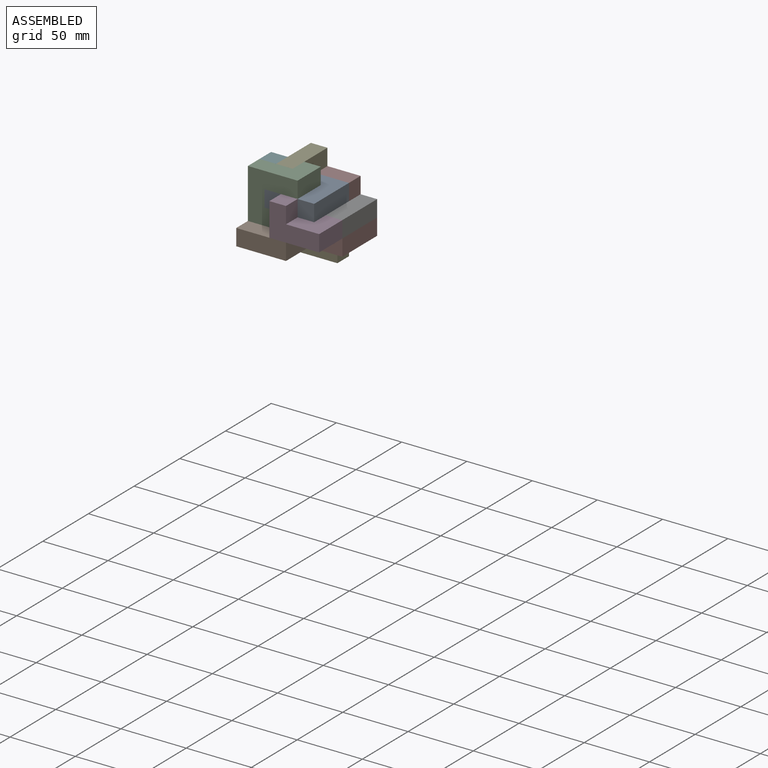
[diagram: assembled view]
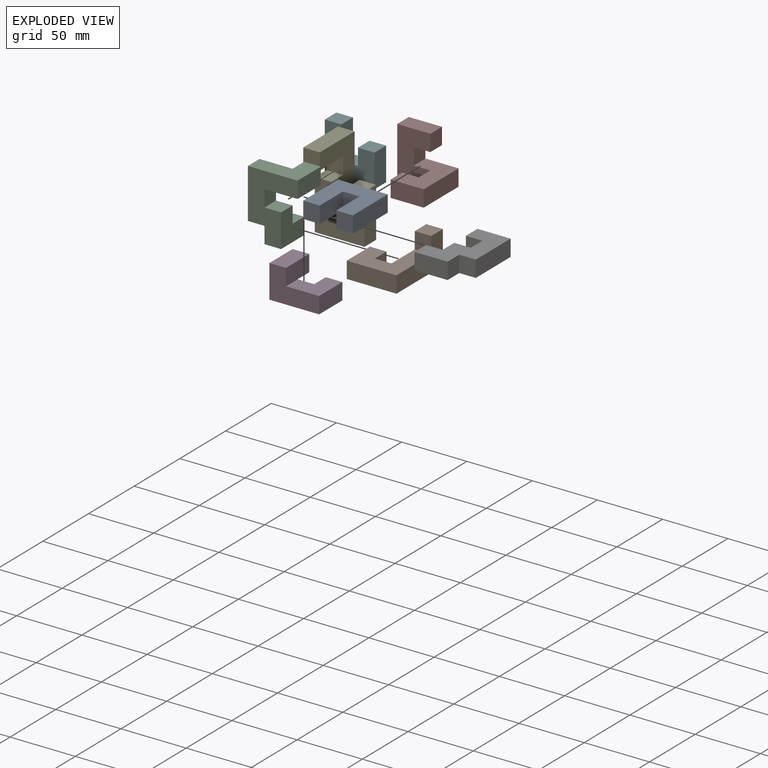
[diagram: exploded view]
GUIDED TOUR — MATED ASSEMBLY (Onshape document 6fbb4858d770c2b3fe43645e, AutoMate assembly 6fbb4858d770c2b3fe43645e_54ea213161431d35774409cc_f73f96c887cfaddfc6c54e61_default)

This assembly has 8 components, labeled P0..P7 below (a component is one placed occurrence of a part; the same part can appear more than once), held together by 21 mates. A mate is a constraint between two components; its type names the relative motion it leaves free:
  PLANAR — leaves sliding in the plane through the listed point (normal = the listed direction) and rotation about that normal free.
Axis/direction vectors are unit vectors and 'through' points are millimeter coordinates, both in the assembly's world frame.

MATES
  1. PLANAR "Planar 9": P2 <-> P1, direction (-1.000, 0.000, 0.000) through (-52.81, -97.62, 18.22) mm
  2. PLANAR "Planar 18": P3 <-> P6, direction (-1.000, 0.000, 0.000) through (-14.71, -103.97, 30.92) mm
  3. PLANAR "Planar 10": P4 <-> P0, direction (0.000, 0.000, 1.000) through (-21.06, -78.57, 37.27) mm
  4. PLANAR "Planar 14": P6 <-> P4, direction (0.000, -1.000, 0.000) through (-21.06, -72.22, 37.27) mm
  5. PLANAR "Planar 12": P2 <-> P4, direction (0.000, 1.000, 0.000) through (-46.46, -97.62, 49.97) mm
  6. PLANAR "Planar 16": P6 <-> P3, direction (0.000, -1.000, 0.000) through (-8.36, -97.62, 30.92) mm
  7. PLANAR "Planar 3": P5 <-> P0, direction (0.000, 1.000, 0.000) through (-50.09, -84.92, 36.36) mm
  8. PLANAR "Planar 6": P5 <-> P2, direction (0.000, -1.000, 0.000) through (-40.11, -97.62, 37.27) mm
  9. PLANAR "Planar 13": P6 <-> P2, direction (-1.000, 0.000, 0.000) through (-40.11, -103.97, 30.92) mm
  10. PLANAR "Planar 15": P6 <-> P0, direction (0.000, 0.000, 1.000) through (-17.43, -85.82, 37.27) mm
  11. PLANAR "Planar 4": P2 <-> P5, direction (0.000, 0.000, 1.000) through (-46.46, -91.27, 24.57) mm
  12. PLANAR "Planar 21": P7 <-> P6, direction (1.000, 0.000, 0.000) through (-27.41, -72.22, 37.27) mm
  13. PLANAR "Planar 20": P7 <-> P4, direction (0.000, 1.000, 0.000) through (-21.06, -84.92, 18.22) mm
  14. PLANAR "Planar 2": P5 <-> P0, direction (-1.000, 0.000, 0.000) through (-40.11, -97.62, 49.97) mm
  15. PLANAR "Planar 11": P4 <-> P1, direction (-1.000, 0.000, 0.000) through (-27.41, -78.57, 24.57) mm
  16. PLANAR "Planar 8": P1 <-> P2, direction (0.000, 1.000, 0.000) through (-46.46, -110.32, 18.22) mm
  17. PLANAR "Planar 19": P7 <-> P6, direction (0.000, 0.000, 1.000) through (-2.01, -78.57, 24.57) mm
  18. PLANAR "Planar 5": P0 <-> P2, direction (-1.000, 0.000, 0.000) through (-52.81, -110.32, 43.62) mm
  19. PLANAR "Planar 7": P1 <-> P5, direction (0.000, 0.000, 1.000) through (-44.35, -108.20, 24.57) mm
  20. PLANAR "Planar 1": P5 <-> P0, direction (0.000, 0.000, 1.000) through (-46.46, -91.27, 37.27) mm
  21. PLANAR "Planar 17": P3 <-> P1, direction (0.000, 0.000, -1.000) through (-17.89, -113.49, 24.57) mm

ASSEMBLY ORDER
  1. P2 — the base component [order heuristic]
  2. P0 — core [order heuristic]
  3. P5 — core [order heuristic]
  4. P3 [order verified]
  5. P6 — core [order heuristic]
  6. P4 — core [order heuristic]
  7. P7 — core [order heuristic]
  8. P1 [order verified]
Order-tag legend:
  [order verified] — this step's position reverses a verified removal order: the component was checked to insert without passing through the ones already placed.
  [order heuristic] — the first 6 components form the assembly's core: parts whose collision-free extraction could not be verified, listed in mate-graph order.

Of the 8 components, 4 carry the full construction recipe — the FeatureScript program that regenerates the part's solid from scratch; the rest are supplied as boundary geometry only.
Each toured component is shown spotlighted twice — in the assembled view, then in the exploded view, where a leader line traces a displaced component back to its assembled socket (saturated green if recipe-attached, orange if geometry-only; every other component desaturated gray) — followed by its recipe or geometry summary and the mates that hold it.
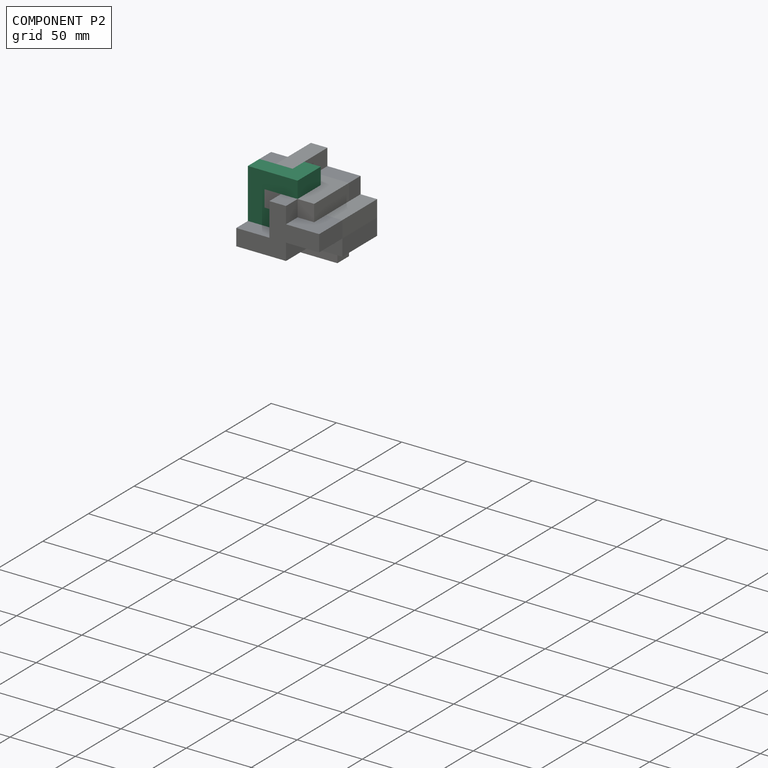
[diagram: component P2 — assembled]
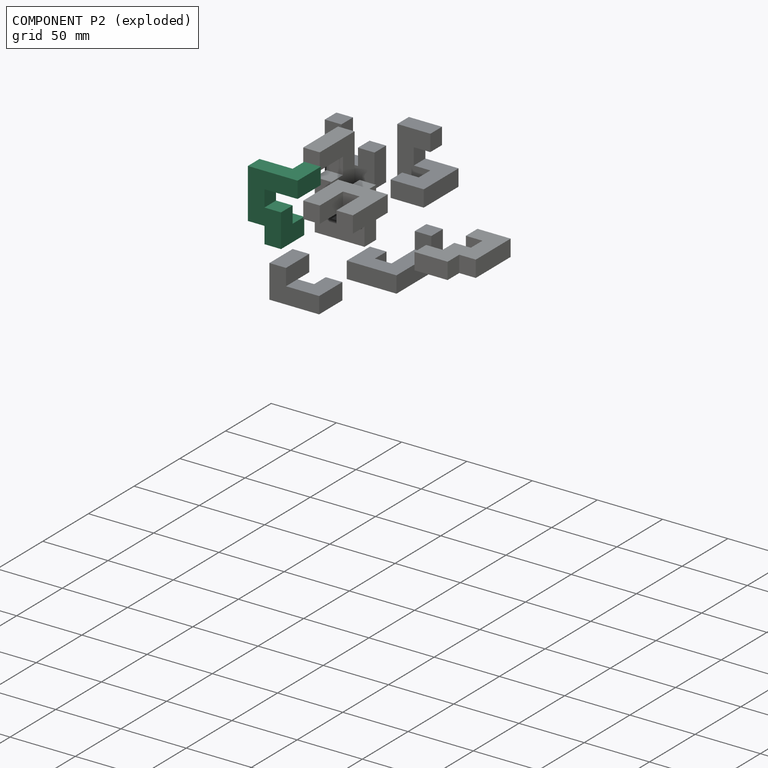
[diagram: component P2 — exploded]
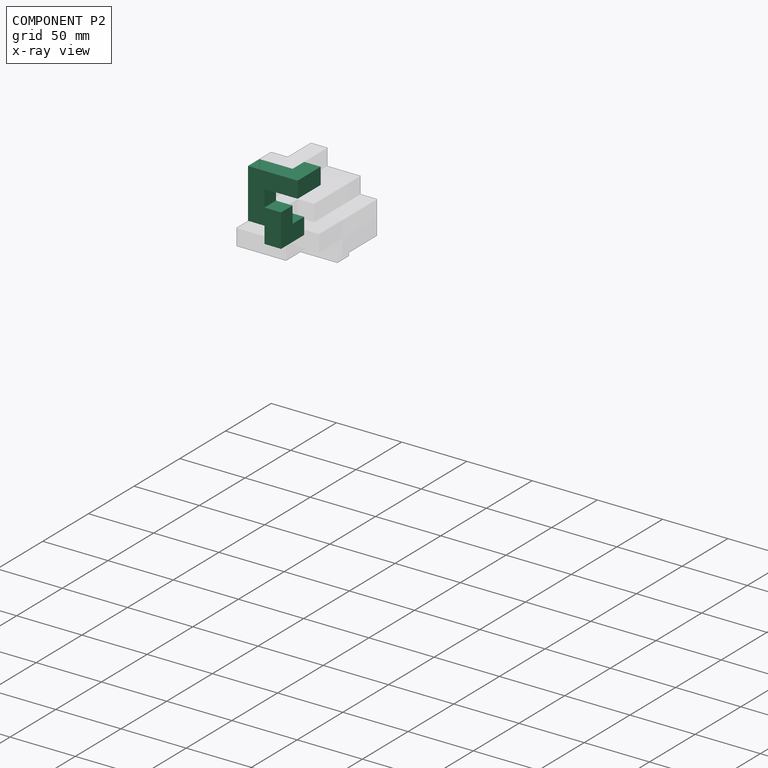
[diagram: component P2 — x-ray view]
COMPONENT P2 — recipe-attached (CADFS 00937155, mesh-verified: the recipe's output STEP matches this component's geometry to below the mesh-comparison resolution (tessellation chordal tolerance ~0.103 mm)).
Held by: PLANAR mate "Planar 9" to P1; PLANAR mate "Planar 12" to P4; PLANAR mate "Planar 6" to P5; PLANAR mate "Planar 13" to P6; PLANAR mate "Planar 4" to P5; PLANAR mate "Planar 8" to P1; PLANAR mate "Planar 5" to P0.
Construction recipe (FeatureScript — the CAD program that rebuilds this solid; sketch coordinates are in the units given by the * unit suffixes, e.g. mm):

FeatureScript 1511;
import(path : "onshape/std/geometry.fs", version : "1511.0");
import(path : "onshape/std/common.fs", version : "1511.0");
const mm = millimeter;
const VERTEX = EntityType.VERTEX;
const EDGE = EntityType.EDGE;
const FACE = EntityType.FACE;
const BODY = EntityType.BODY;
function v(x, y){return vector(x, y);}
function OD(order){return orderDisambiguation(order);}
function OSD(set){return originalSetDisambiguation(set);}
function TD(topology){return topologyDisambiguation(topology);}
function TDD(query){return trueDependencyDisambiguation(query);}
function sQuery(a, b, c) {return sketchEntityQuery(a, b, c);}

annotation { "Feature Type Name" : "Feature", "Feature Type Description" : "" }
export const myFeature = defineFeature(function(context is Context, id is Id, definition is map)
    precondition{}
    {
        {
            var Q0;
            Q0=qCreatedBy(makeId("Front.planeOp"),FACE);
            var sketch = newSketch(context, id + "F0", { "sketchPlane" : qUnion([Q0])});
            skLineSegment(sketch, "E0.bottom", {"start": v(-61.09, 62.84) * mm, "end": v(-48.39, 62.84) * mm});
            skLineSegment(sketch, "E0.top", {"start": v(-61.09, 50.14) * mm, "end": v(-48.39, 50.14) * mm});
            skLineSegment(sketch, "E0.left", {"start": v(-61.09, 62.84) * mm, "end": v(-61.09, 50.14) * mm});
            skLineSegment(sketch, "E0.right", {"start": v(-48.39, 62.84) * mm, "end": v(-48.39, 50.14) * mm});
            skLineSegment(sketch, "E1.top", {"start": v(-61.09, 37.44) * mm, "end": v(-48.39, 37.44) * mm});
            skLineSegment(sketch, "E1.left", {"start": v(-61.09, 50.14) * mm, "end": v(-61.09, 37.44) * mm});
            skLineSegment(sketch, "E1.right", {"start": v(-48.39, 50.14) * mm, "end": v(-48.39, 37.44) * mm});
            skLineSegment(sketch, "E2.top", {"start": v(-61.09, 24.74) * mm, "end": v(-48.39, 24.74) * mm});
            skLineSegment(sketch, "E2.left", {"start": v(-61.09, 37.44) * mm, "end": v(-61.09, 24.74) * mm});
            skLineSegment(sketch, "E2.right", {"start": v(-48.39, 37.44) * mm, "end": v(-48.39, 24.74) * mm});
            skLineSegment(sketch, "E3.bottom", {"start": v(-48.39, 24.74) * mm, "end": v(-35.69, 24.74) * mm});
            skLineSegment(sketch, "E3.top", {"start": v(-48.39, 37.44) * mm, "end": v(-35.69, 37.44) * mm});
            skLineSegment(sketch, "E3.left", {"start": v(-48.39, 24.74) * mm, "end": v(-48.39, 37.44) * mm});
            skLineSegment(sketch, "E3.right", {"start": v(-35.69, 24.74) * mm, "end": v(-35.69, 37.44) * mm});
            skLineSegment(sketch, "E4.bottom", {"start": v(-35.69, 37.44) * mm, "end": v(-22.99, 37.44) * mm});
            skLineSegment(sketch, "E4.top", {"start": v(-35.69, 24.74) * mm, "end": v(-22.99, 24.74) * mm});
            skLineSegment(sketch, "E4.left", {"start": v(-35.69, 37.44) * mm, "end": v(-35.69, 24.74) * mm});
            skLineSegment(sketch, "E4.right", {"start": v(-22.99, 37.44) * mm, "end": v(-22.99, 24.74) * mm});
            skLineSegment(sketch, "E5.top", {"start": v(-35.69, 50.14) * mm, "end": v(-22.99, 50.14) * mm});
            skLineSegment(sketch, "E5.left", {"start": v(-35.69, 37.44) * mm, "end": v(-35.69, 50.14) * mm});
            skLineSegment(sketch, "E5.right", {"start": v(-22.99, 37.44) * mm, "end": v(-22.99, 50.14) * mm});
            skLineSegment(sketch, "E6.bottom", {"start": v(-22.99, 50.14) * mm, "end": v(-10.29, 50.14) * mm});
            skLineSegment(sketch, "E6.top", {"start": v(-22.99, 37.44) * mm, "end": v(-10.29, 37.44) * mm});
            skLineSegment(sketch, "E6.left", {"start": v(-22.99, 50.14) * mm, "end": v(-22.99, 37.44) * mm});
            skLineSegment(sketch, "E6.right", {"start": v(-10.29, 50.14) * mm, "end": v(-10.29, 37.44) * mm});
            skSolve(sketch);
        }
        {
            var Q0;
            Q0=makeQuery(id+"F0.imprint","IMPRINT",FACE,{"disambiguationData":[TD([[makeQuery(id+"F0.imprint","IMPRINT",EDGE,{"derivedFrom":sQuery(id+"F0.wireOp",EDGE,"E0.top")}),-1.0]])]});
            var Q1;
            Q1=makeQuery(id+"F0.imprint","IMPRINT",FACE,{"disambiguationData":[TD([[makeQuery(id+"F0.imprint","IMPRINT",EDGE,{"derivedFrom":sQuery(id+"F0.wireOp",EDGE,"E1.top")}),-1.0]])]});
            var Q2;
            Q2=makeQuery(id+"F0.imprint","IMPRINT",FACE,{"disambiguationData":[TD([[makeQuery(id+"F0.imprint","IMPRINT",EDGE,{"derivedFrom":sQuery(id+"F0.wireOp",EDGE,"E4.top")}),1.0]])]});
            var Q3;
            Q3=makeQuery(id+"F0.imprint","IMPRINT",FACE,{"disambiguationData":[TD([[makeQuery(id+"F0.imprint","IMPRINT",EDGE,{"derivedFrom":sQuery(id+"F0.wireOp",EDGE,"E3.bottom")}),1.0]])]});
            var Q4;
            Q4=makeQuery(id+"F0.imprint","IMPRINT",FACE,{"disambiguationData":[TD([[makeQuery(id+"F0.imprint","IMPRINT",EDGE,{"derivedFrom":sQuery(id+"F0.wireOp",EDGE,"E4.bottom")}),1.0]])]});
            extrude(context, id + "F1", {"entities" : qUnion([Q0, Q1, Q2, Q3, Q4]), "depth" : 12.7 * mm, "offsetDistance" : 25.4 * mm});
        }
        {
            var Q0;
            Q0=makeQuery(id+"F0.imprint","IMPRINT",FACE,{"disambiguationData":[TD([[makeQuery(id+"F0.imprint","IMPRINT",EDGE,{"derivedFrom":sQuery(id+"F0.wireOp",EDGE,"E0.bottom")}),-1.0]])]});
            var Q1;
            Q1=makeQuery(id+"F0.imprint","IMPRINT",FACE,{"disambiguationData":[TD([[makeQuery(id+"F0.imprint","IMPRINT",EDGE,{"derivedFrom":sQuery(id+"F0.wireOp",EDGE,"E6.bottom")}),-1.0]])]});
            extrude(context, id + "F2", {"entities" : qUnion([Q0, Q1]), "operationType" : NewBodyOperationType.ADD, "endBound" : BoundingType.SYMMETRIC, "depth" : 25.4 * mm, "offsetDistance" : 25.4 * mm});
        }
    });
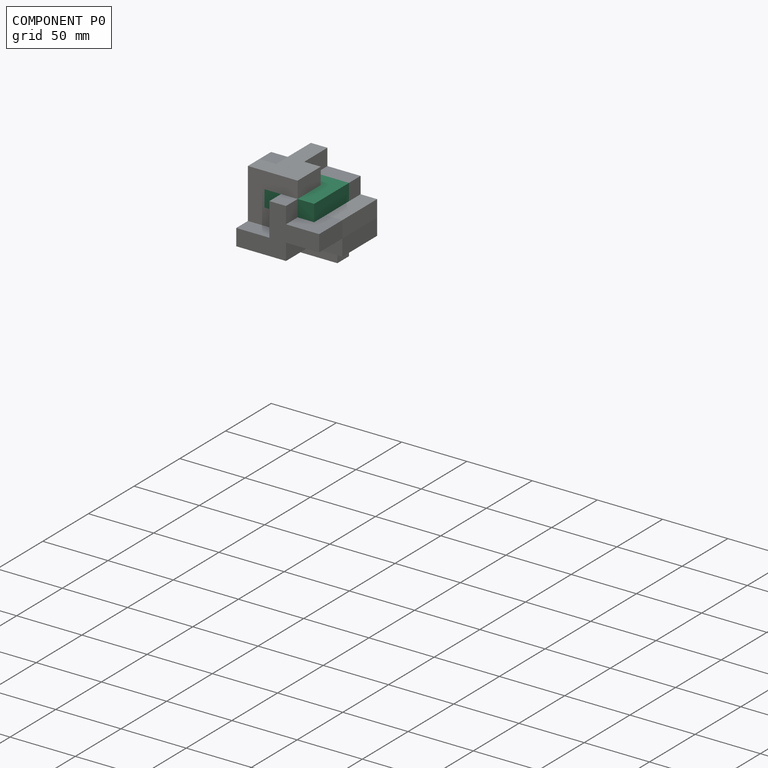
[diagram: component P0 — assembled]
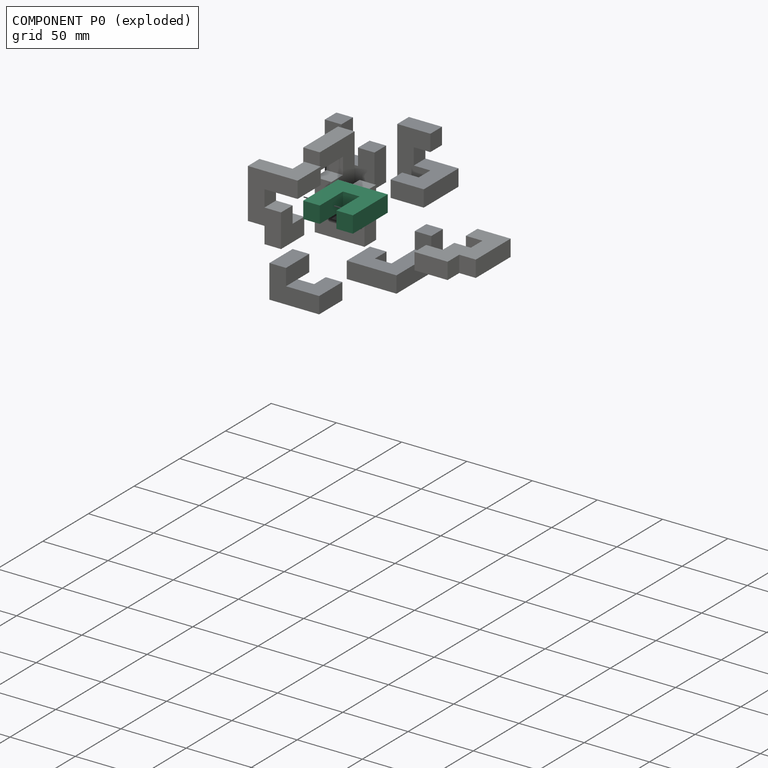
[diagram: component P0 — exploded]
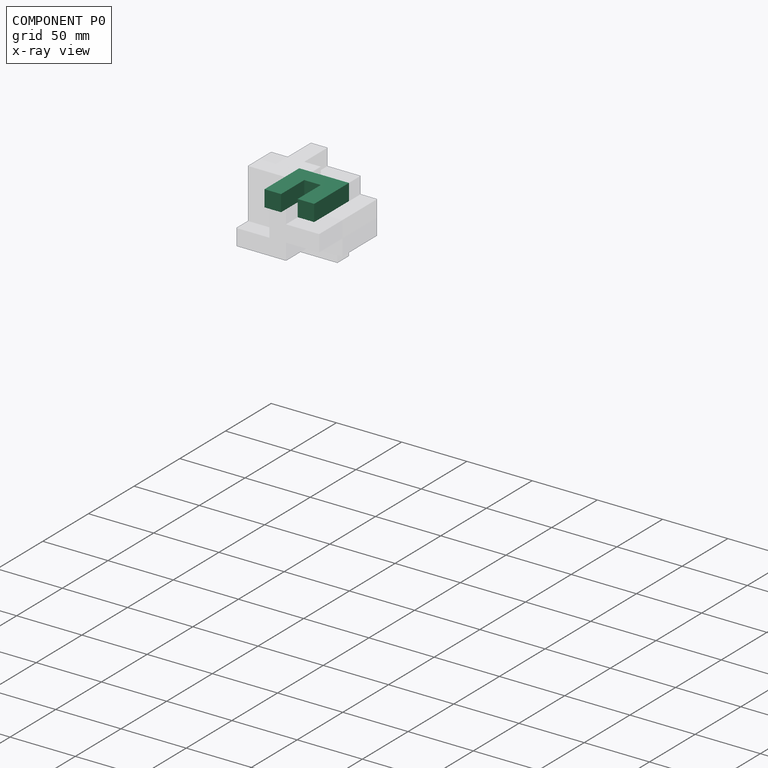
[diagram: component P0 — x-ray view]
COMPONENT P0 — recipe-attached (CADFS 00937154, mesh-verified: the recipe's output STEP matches this component's geometry to below the mesh-comparison resolution (tessellation chordal tolerance ~0.083 mm)).
Held by: PLANAR mate "Planar 10" to P4; PLANAR mate "Planar 3" to P5; PLANAR mate "Planar 15" to P6; PLANAR mate "Planar 2" to P5; PLANAR mate "Planar 5" to P2; PLANAR mate "Planar 1" to P5.
Construction recipe (FeatureScript — the CAD program that rebuilds this solid; sketch coordinates are in the units given by the * unit suffixes, e.g. mm):

FeatureScript 1511;
import(path : "onshape/std/geometry.fs", version : "1511.0");
import(path : "onshape/std/common.fs", version : "1511.0");
const mm = millimeter;
const VERTEX = EntityType.VERTEX;
const EDGE = EntityType.EDGE;
const FACE = EntityType.FACE;
const BODY = EntityType.BODY;
function v(x, y){return vector(x, y);}
function OD(order){return orderDisambiguation(order);}
function OSD(set){return originalSetDisambiguation(set);}
function TD(topology){return topologyDisambiguation(topology);}
function TDD(query){return trueDependencyDisambiguation(query);}
function sQuery(a, b, c) {return sketchEntityQuery(a, b, c);}

annotation { "Feature Type Name" : "Feature", "Feature Type Description" : "" }
export const myFeature = defineFeature(function(context is Context, id is Id, definition is map)
    precondition{}
    {
        {
            var Q0;
            Q0=qCreatedBy(makeId("Front.planeOp"),FACE);
            var sketch = newSketch(context, id + "F0", { "sketchPlane" : qUnion([Q0])});
            skLineSegment(sketch, "E0.bottom", {"start": v(-19.05, 17.24) * mm, "end": v(-6.35, 17.24) * mm});
            skLineSegment(sketch, "E0.top", {"start": v(-19.05, 4.54) * mm, "end": v(-6.35, 4.54) * mm});
            skLineSegment(sketch, "E0.left", {"start": v(-19.05, 17.24) * mm, "end": v(-19.05, 4.54) * mm});
            skLineSegment(sketch, "E0.right", {"start": v(-6.35, 17.24) * mm, "end": v(-6.35, 4.54) * mm});
            skLineSegment(sketch, "E1.top", {"start": v(-19.05, -8.16) * mm, "end": v(-6.35, -8.16) * mm});
            skLineSegment(sketch, "E1.left", {"start": v(-19.05, 4.54) * mm, "end": v(-19.05, -8.16) * mm});
            skLineSegment(sketch, "E1.right", {"start": v(-6.35, 4.54) * mm, "end": v(-6.35, -8.16) * mm});
            skLineSegment(sketch, "E2.top", {"start": v(-19.05, -20.86) * mm, "end": v(-6.35, -20.86) * mm});
            skLineSegment(sketch, "E2.left", {"start": v(-19.05, -8.16) * mm, "end": v(-19.05, -20.86) * mm});
            skLineSegment(sketch, "E2.right", {"start": v(-6.35, -8.16) * mm, "end": v(-6.35, -20.86) * mm});
            skLineSegment(sketch, "E3.bottom", {"start": v(-6.35, 17.24) * mm, "end": v(6.35, 17.24) * mm});
            skLineSegment(sketch, "E3.top", {"start": v(-6.35, 4.54) * mm, "end": v(6.35, 4.54) * mm});
            skLineSegment(sketch, "E3.right", {"start": v(6.35, 17.24) * mm, "end": v(6.35, 4.54) * mm});
            skLineSegment(sketch, "E4.bottom", {"start": v(6.35, 17.24) * mm, "end": v(19.05, 17.24) * mm});
            skLineSegment(sketch, "E4.top", {"start": v(6.35, 4.54) * mm, "end": v(19.05, 4.54) * mm});
            skLineSegment(sketch, "E4.right", {"start": v(19.05, 17.24) * mm, "end": v(19.05, 4.54) * mm});
            skLineSegment(sketch, "E5.top", {"start": v(6.35, -8.16) * mm, "end": v(19.05, -8.16) * mm});
            skLineSegment(sketch, "E5.left", {"start": v(6.35, 4.54) * mm, "end": v(6.35, -8.16) * mm});
            skLineSegment(sketch, "E5.right", {"start": v(19.05, 4.54) * mm, "end": v(19.05, -8.16) * mm});
            skLineSegment(sketch, "E6.bottom", {"start": v(19.05, -8.16) * mm, "end": v(6.35, -8.16) * mm});
            skLineSegment(sketch, "E6.top", {"start": v(19.05, -20.86) * mm, "end": v(6.35, -20.86) * mm});
            skLineSegment(sketch, "E6.left", {"start": v(19.05, -8.16) * mm, "end": v(19.05, -20.86) * mm});
            skLineSegment(sketch, "E6.right", {"start": v(6.35, -8.16) * mm, "end": v(6.35, -20.86) * mm});
            skSolve(sketch);
        }
        {
            var Q0;
            Q0 = qSketchRegion(id + "F0", true);
            extrude(context, id + "F1", {"entities" : qUnion([Q0]), "endBound" : BoundingType.SYMMETRIC, "depth" : 12.7 * mm, "offsetDistance" : 25.4 * mm});
        }
    });
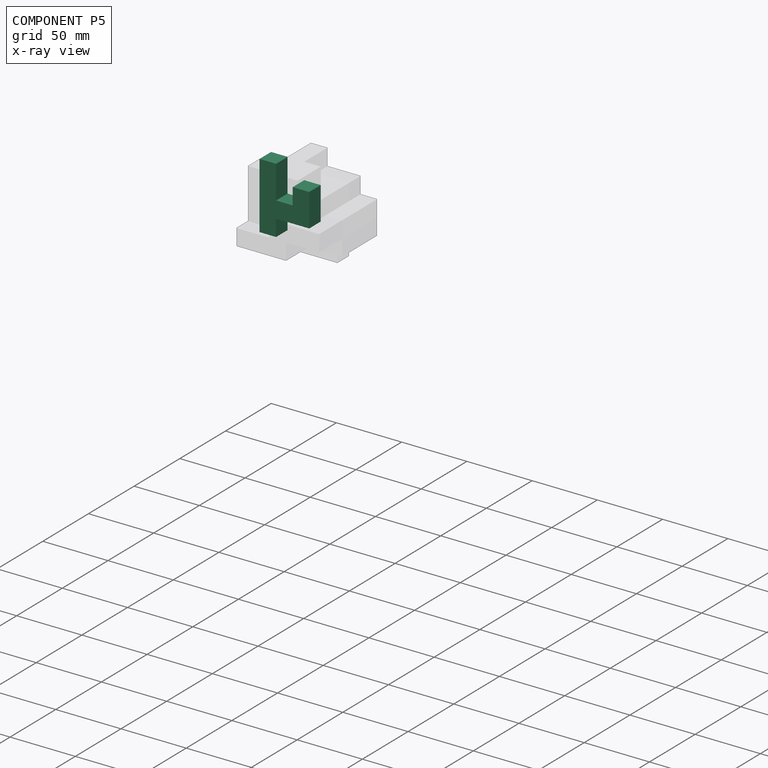
[diagram: component P5 — x-ray view]
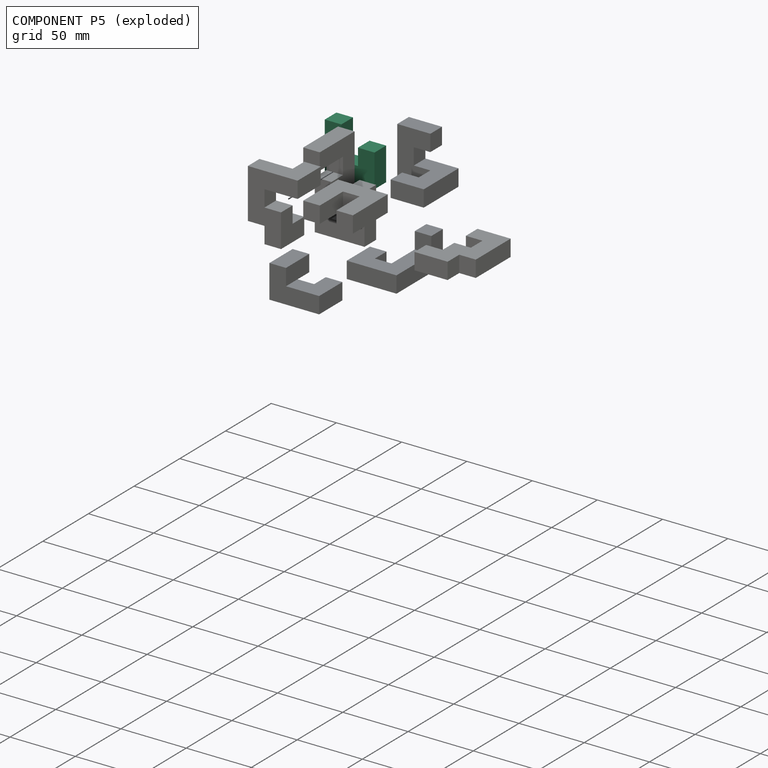
[diagram: component P5 — exploded]
COMPONENT P5 — recipe-attached (CADFS 00937153, mesh-verified: the recipe's output STEP matches this component's geometry to below the mesh-comparison resolution (tessellation chordal tolerance ~0.0971 mm)).
Held by: PLANAR mate "Planar 3" to P0; PLANAR mate "Planar 6" to P2; PLANAR mate "Planar 4" to P2; PLANAR mate "Planar 2" to P0; PLANAR mate "Planar 7" to P1; PLANAR mate "Planar 1" to P0.
Construction recipe (FeatureScript — the CAD program that rebuilds this solid; sketch coordinates are in the units given by the * unit suffixes, e.g. mm):

FeatureScript 1511;
import(path : "onshape/std/geometry.fs", version : "1511.0");
import(path : "onshape/std/common.fs", version : "1511.0");
const mm = millimeter;
const VERTEX = EntityType.VERTEX;
const EDGE = EntityType.EDGE;
const FACE = EntityType.FACE;
const BODY = EntityType.BODY;
function v(x, y){return vector(x, y);}
function OD(order){return orderDisambiguation(order);}
function OSD(set){return originalSetDisambiguation(set);}
function TD(topology){return topologyDisambiguation(topology);}
function TDD(query){return trueDependencyDisambiguation(query);}
function sQuery(a, b, c) {return sketchEntityQuery(a, b, c);}

annotation { "Feature Type Name" : "Feature", "Feature Type Description" : "" }
export const myFeature = defineFeature(function(context is Context, id is Id, definition is map)
    precondition{}
    {
        {
            var Q0;
            Q0=qCreatedBy(makeId("Front.planeOp"),FACE);
            var sketch = newSketch(context, id + "F0", { "sketchPlane" : qUnion([Q0])});
            skLineSegment(sketch, "E0.bottom", {"start": v(-55.6, 53.3) * mm, "end": v(-42.9, 53.3) * mm});
            skLineSegment(sketch, "E0.top", {"start": v(-55.6, 40.6) * mm, "end": v(-42.9, 40.6) * mm});
            skLineSegment(sketch, "E0.left", {"start": v(-55.6, 53.3) * mm, "end": v(-55.6, 40.6) * mm});
            skLineSegment(sketch, "E0.right", {"start": v(-42.9, 53.3) * mm, "end": v(-42.9, 40.6) * mm});
            skLineSegment(sketch, "E1.top", {"start": v(-55.6, 27.9) * mm, "end": v(-42.9, 27.9) * mm});
            skLineSegment(sketch, "E1.left", {"start": v(-55.6, 40.6) * mm, "end": v(-55.6, 27.9) * mm});
            skLineSegment(sketch, "E1.right", {"start": v(-42.9, 40.6) * mm, "end": v(-42.9, 27.9) * mm});
            skLineSegment(sketch, "E2.top", {"start": v(-55.6, 15.2) * mm, "end": v(-42.9, 15.2) * mm});
            skLineSegment(sketch, "E2.left", {"start": v(-55.6, 27.9) * mm, "end": v(-55.6, 15.2) * mm});
            skLineSegment(sketch, "E2.right", {"start": v(-42.9, 27.9) * mm, "end": v(-42.9, 15.2) * mm});
            skLineSegment(sketch, "E3.top", {"start": v(-55.6, 2.5) * mm, "end": v(-42.9, 2.5) * mm});
            skLineSegment(sketch, "E3.left", {"start": v(-55.6, 15.2) * mm, "end": v(-55.6, 2.5) * mm});
            skLineSegment(sketch, "E3.right", {"start": v(-42.9, 15.2) * mm, "end": v(-42.9, 2.5) * mm});
            skLineSegment(sketch, "E4.bottom", {"start": v(-42.9, 27.9) * mm, "end": v(-30.2, 27.9) * mm});
            skLineSegment(sketch, "E4.top", {"start": v(-42.9, 15.2) * mm, "end": v(-30.2, 15.2) * mm});
            skLineSegment(sketch, "E4.right", {"start": v(-30.2, 27.9) * mm, "end": v(-30.2, 15.2) * mm});
            skLineSegment(sketch, "E5.bottom", {"start": v(-30.2, 27.9) * mm, "end": v(-17.5, 27.9) * mm});
            skLineSegment(sketch, "E5.top", {"start": v(-30.2, 15.2) * mm, "end": v(-17.5, 15.2) * mm});
            skLineSegment(sketch, "E5.right", {"start": v(-17.5, 27.9) * mm, "end": v(-17.5, 15.2) * mm});
            skLineSegment(sketch, "E6.bottom", {"start": v(-17.5, 27.9) * mm, "end": v(-30.2, 27.9) * mm});
            skLineSegment(sketch, "E6.top", {"start": v(-17.5, 40.6) * mm, "end": v(-30.2, 40.6) * mm});
            skLineSegment(sketch, "E6.left", {"start": v(-17.5, 27.9) * mm, "end": v(-17.5, 40.6) * mm});
            skLineSegment(sketch, "E6.right", {"start": v(-30.2, 27.9) * mm, "end": v(-30.2, 40.6) * mm});
            skSolve(sketch);
        }
        {
            var Q0;
            Q0 = qSketchRegion(id + "F0", true);
            extrude(context, id + "F1", {"entities" : qUnion([Q0]), "endBound" : BoundingType.SYMMETRIC, "depth" : 12.7 * mm, "offsetDistance" : 25.4 * mm});
        }
    });
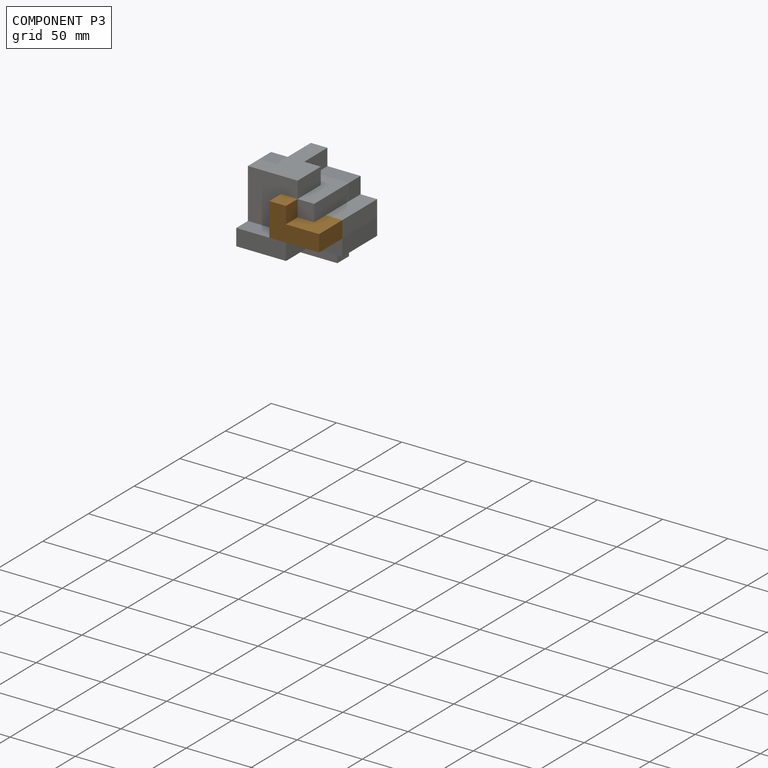
[diagram: component P3 — assembled]
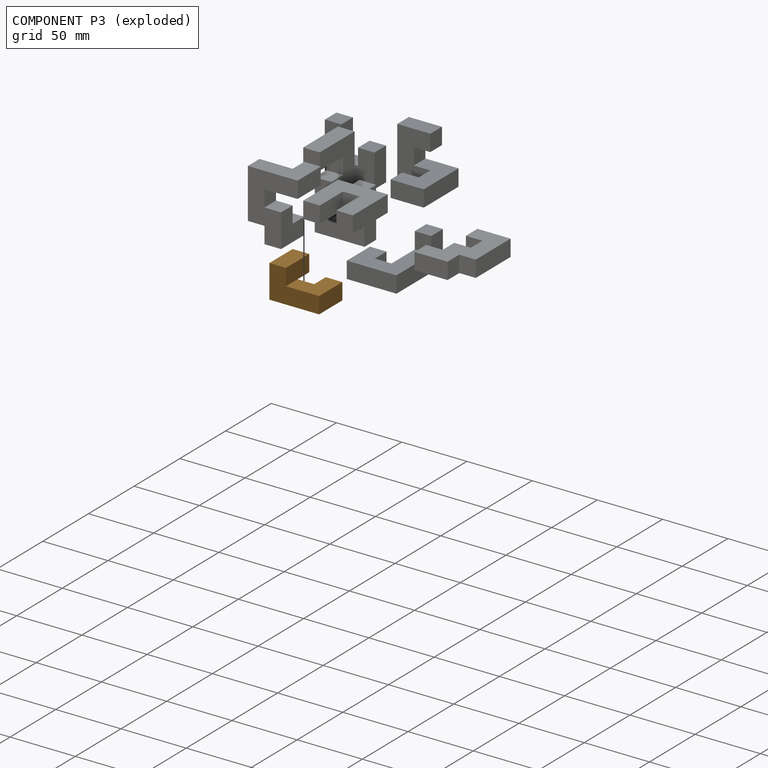
[diagram: component P3 — exploded]
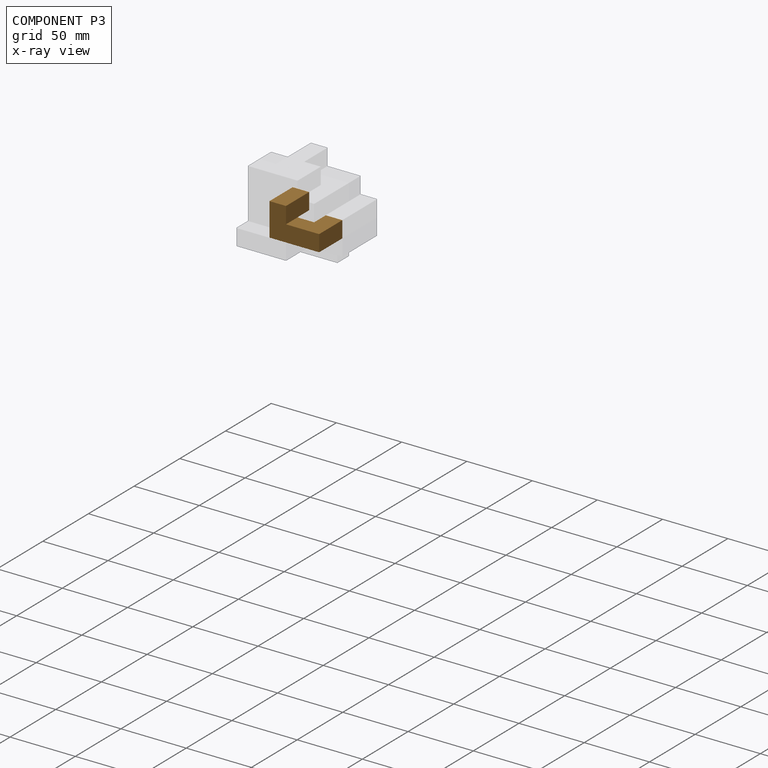
[diagram: component P3 — x-ray view]
COMPONENT P3 — geometry summary (no construction recipe available for this part):
  bounding box: 38.1 x 25.4 x 25.4 mm
  B-rep topology: 1 solid, 12 faces, 58 edges
  volume: 12290 mm^3 (50% of its bounding box)
Held by: PLANAR mate "Planar 18" to P6; PLANAR mate "Planar 16" to P6; PLANAR mate "Planar 17" to P1.
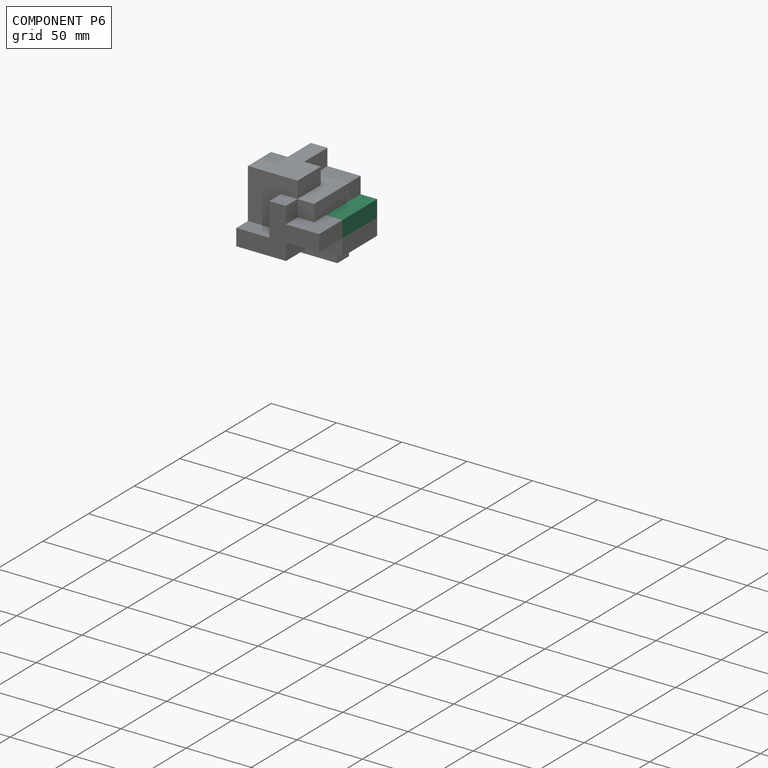
[diagram: component P6 — assembled]
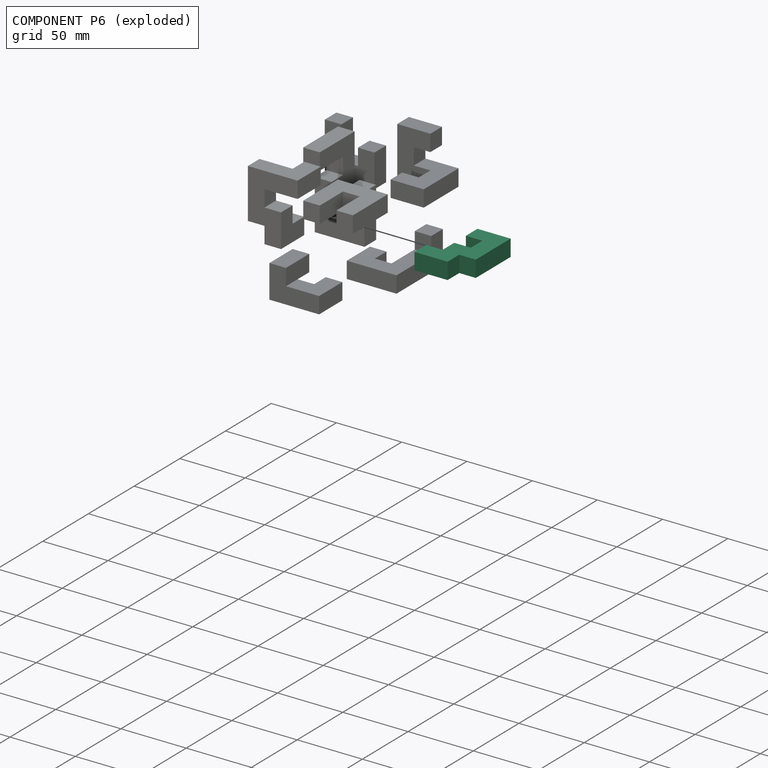
[diagram: component P6 — exploded]
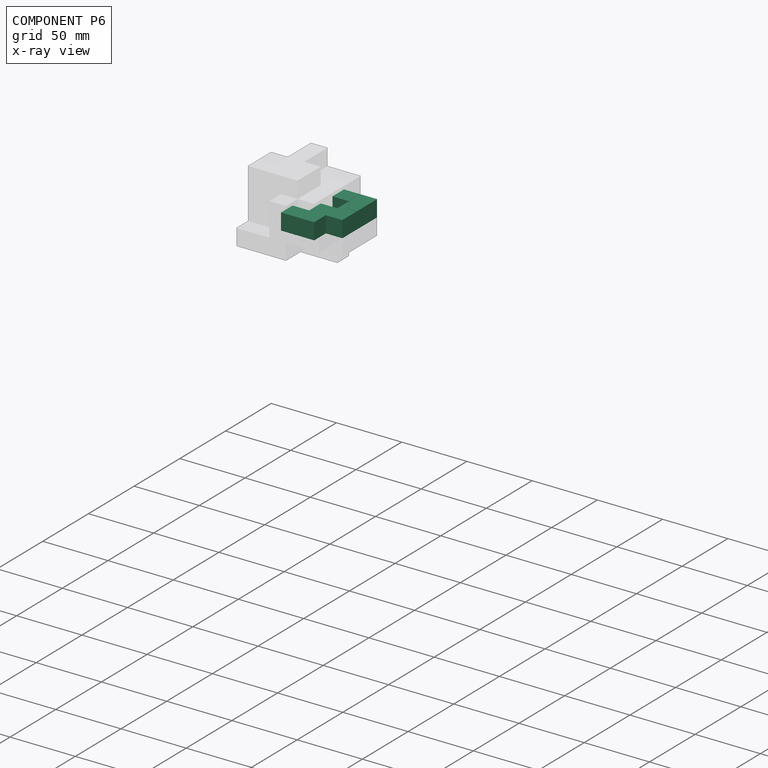
[diagram: component P6 — x-ray view]
COMPONENT P6 — recipe-attached (CADFS 00937158, mesh-verified: the recipe's output STEP matches this component's geometry to below the mesh-comparison resolution (tessellation chordal tolerance ~0.0971 mm)).
Held by: PLANAR mate "Planar 18" to P3; PLANAR mate "Planar 14" to P4; PLANAR mate "Planar 16" to P3; PLANAR mate "Planar 13" to P2; PLANAR mate "Planar 15" to P0; PLANAR mate "Planar 21" to P7; PLANAR mate "Planar 19" to P7.
Construction recipe (FeatureScript — the CAD program that rebuilds this solid; sketch coordinates are in the units given by the * unit suffixes, e.g. mm):

FeatureScript 1511;
import(path : "onshape/std/geometry.fs", version : "1511.0");
import(path : "onshape/std/common.fs", version : "1511.0");
const mm = millimeter;
const VERTEX = EntityType.VERTEX;
const EDGE = EntityType.EDGE;
const FACE = EntityType.FACE;
const BODY = EntityType.BODY;
function v(x, y){return vector(x, y);}
function OD(order){return orderDisambiguation(order);}
function OSD(set){return originalSetDisambiguation(set);}
function TD(topology){return topologyDisambiguation(topology);}
function TDD(query){return trueDependencyDisambiguation(query);}
function sQuery(a, b, c) {return sketchEntityQuery(a, b, c);}

annotation { "Feature Type Name" : "Feature", "Feature Type Description" : "" }
export const myFeature = defineFeature(function(context is Context, id is Id, definition is map)
    precondition{}
    {
        {
            var Q0;
            Q0=qCreatedBy(makeId("Front.planeOp"),FACE);
            var sketch = newSketch(context, id + "F0", { "sketchPlane" : qUnion([Q0])});
            skLineSegment(sketch, "E0.bottom", {"start": v(-62.43, 23.8) * mm, "end": v(-49.73, 23.8) * mm});
            skLineSegment(sketch, "E0.top", {"start": v(-62.43, 36.5) * mm, "end": v(-49.73, 36.5) * mm});
            skLineSegment(sketch, "E0.left", {"start": v(-62.43, 23.8) * mm, "end": v(-62.43, 36.5) * mm});
            skLineSegment(sketch, "E0.right", {"start": v(-49.73, 23.8) * mm, "end": v(-49.73, 36.5) * mm});
            skLineSegment(sketch, "E1.top", {"start": v(-62.43, 49.2) * mm, "end": v(-49.73, 49.2) * mm});
            skLineSegment(sketch, "E1.left", {"start": v(-62.43, 36.5) * mm, "end": v(-62.43, 49.2) * mm});
            skLineSegment(sketch, "E1.right", {"start": v(-49.73, 36.5) * mm, "end": v(-49.73, 49.2) * mm});
            skLineSegment(sketch, "E2.bottom", {"start": v(-49.73, 49.2) * mm, "end": v(-37.03, 49.2) * mm});
            skLineSegment(sketch, "E2.top", {"start": v(-49.73, 36.5) * mm, "end": v(-37.03, 36.5) * mm});
            skLineSegment(sketch, "E2.left", {"start": v(-49.73, 49.2) * mm, "end": v(-49.73, 36.5) * mm});
            skLineSegment(sketch, "E2.right", {"start": v(-37.03, 49.2) * mm, "end": v(-37.03, 36.5) * mm});
            skLineSegment(sketch, "E3.top", {"start": v(-49.73, 61.9) * mm, "end": v(-37.03, 61.9) * mm});
            skLineSegment(sketch, "E3.left", {"start": v(-49.73, 49.2) * mm, "end": v(-49.73, 61.9) * mm});
            skLineSegment(sketch, "E3.right", {"start": v(-37.03, 49.2) * mm, "end": v(-37.03, 61.9) * mm});
            skLineSegment(sketch, "E4.bottom", {"start": v(-37.03, 61.9) * mm, "end": v(-24.33, 61.9) * mm});
            skLineSegment(sketch, "E4.top", {"start": v(-37.03, 49.2) * mm, "end": v(-24.33, 49.2) * mm});
            skLineSegment(sketch, "E4.left", {"start": v(-37.03, 61.9) * mm, "end": v(-37.03, 49.2) * mm});
            skLineSegment(sketch, "E4.right", {"start": v(-24.33, 61.9) * mm, "end": v(-24.33, 49.2) * mm});
            skLineSegment(sketch, "E5.bottom", {"start": v(-24.33, 61.9) * mm, "end": v(-11.63, 61.9) * mm});
            skLineSegment(sketch, "E5.top", {"start": v(-24.33, 49.2) * mm, "end": v(-11.63, 49.2) * mm});
            skLineSegment(sketch, "E5.right", {"start": v(-11.63, 61.9) * mm, "end": v(-11.63, 49.2) * mm});
            skLineSegment(sketch, "E6.top", {"start": v(-24.33, 36.5) * mm, "end": v(-11.63, 36.5) * mm});
            skLineSegment(sketch, "E6.left", {"start": v(-24.33, 49.2) * mm, "end": v(-24.33, 36.5) * mm});
            skLineSegment(sketch, "E6.right", {"start": v(-11.63, 49.2) * mm, "end": v(-11.63, 36.5) * mm});
            skSolve(sketch);
        }
        {
            var Q0;
            Q0 = qSketchRegion(id + "F0", true);
            extrude(context, id + "F1", {"entities" : qUnion([Q0]), "oppositeDirection" : true, "depth" : 12.7 * mm, "offsetDistance" : 25.4 * mm});
        }
    });
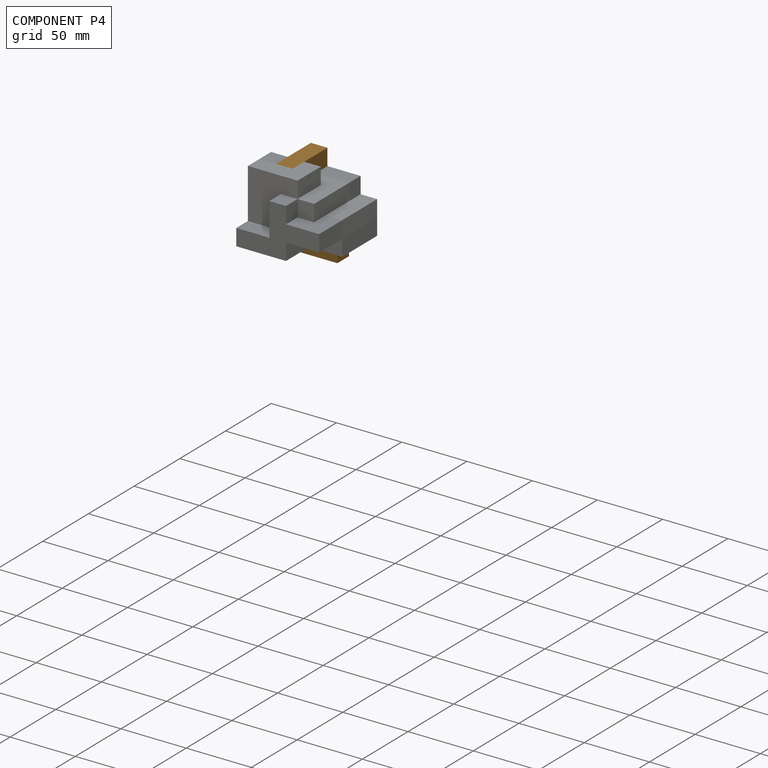
[diagram: component P4 — assembled]
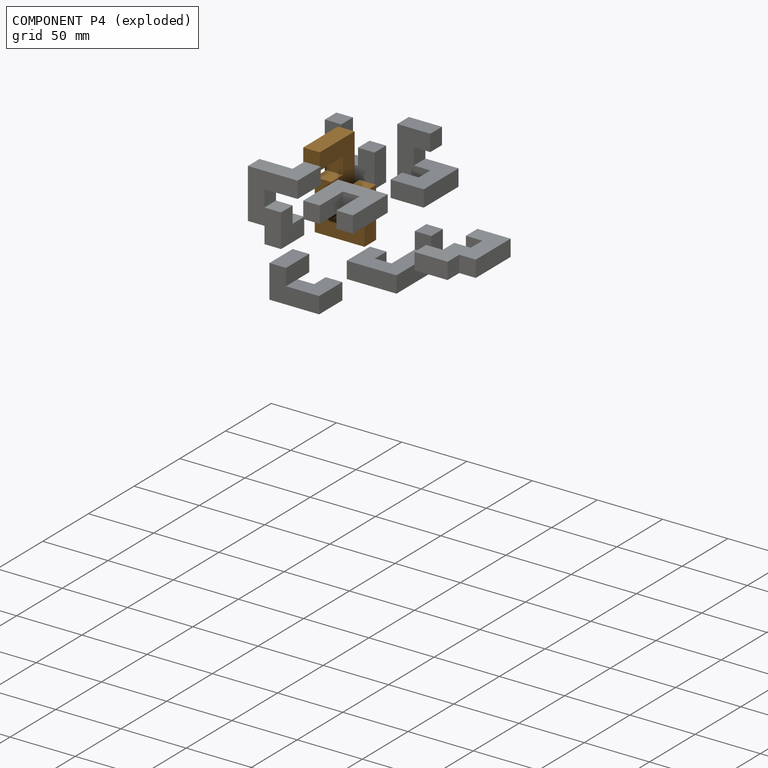
[diagram: component P4 — exploded]
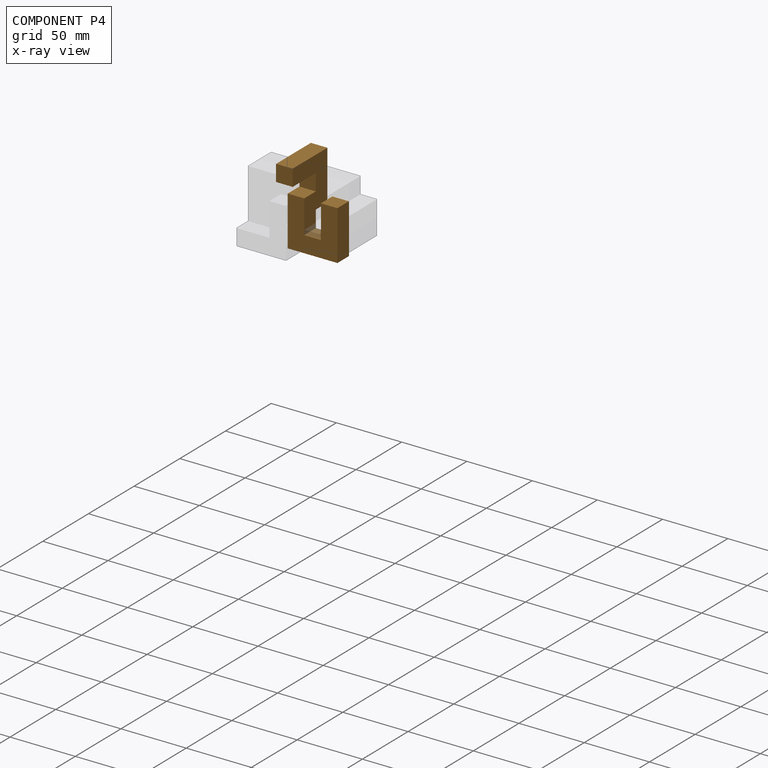
[diagram: component P4 — x-ray view]
COMPONENT P4 — geometry summary (no construction recipe available for this part):
  bounding box: 63.5 x 38.1 x 38.1 mm
  B-rep topology: 1 solid, 16 faces, 84 edges
  volume: 24581 mm^3 (27% of its bounding box)
Held by: PLANAR mate "Planar 10" to P0; PLANAR mate "Planar 14" to P6; PLANAR mate "Planar 12" to P2; PLANAR mate "Planar 20" to P7; PLANAR mate "Planar 11" to P1.
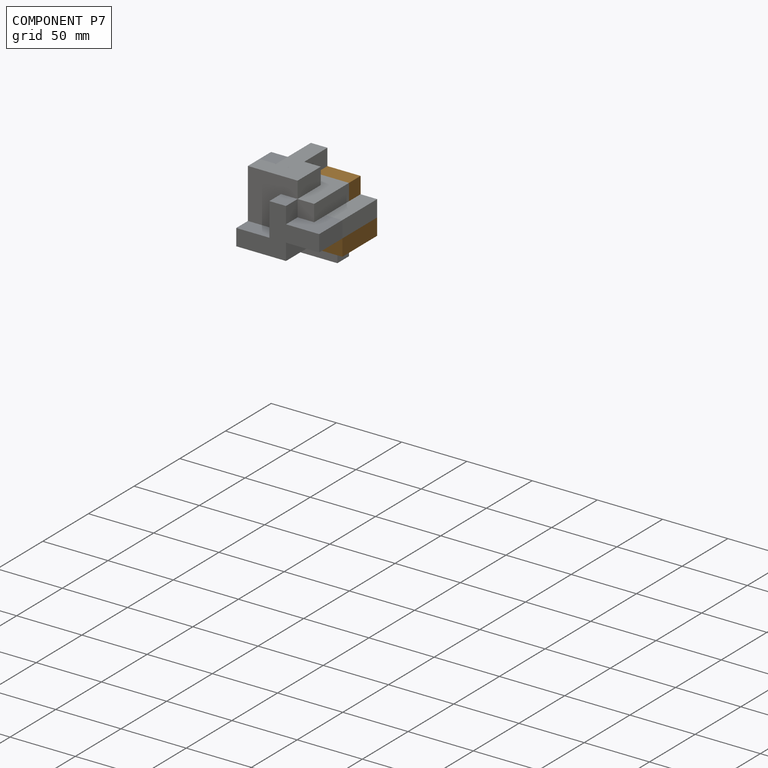
[diagram: component P7 — assembled]
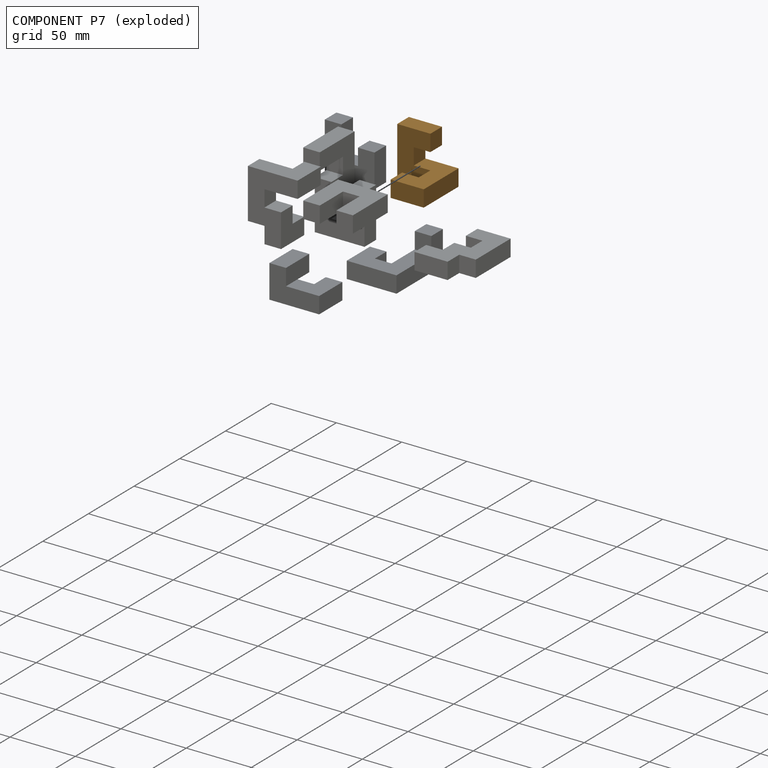
[diagram: component P7 — exploded]
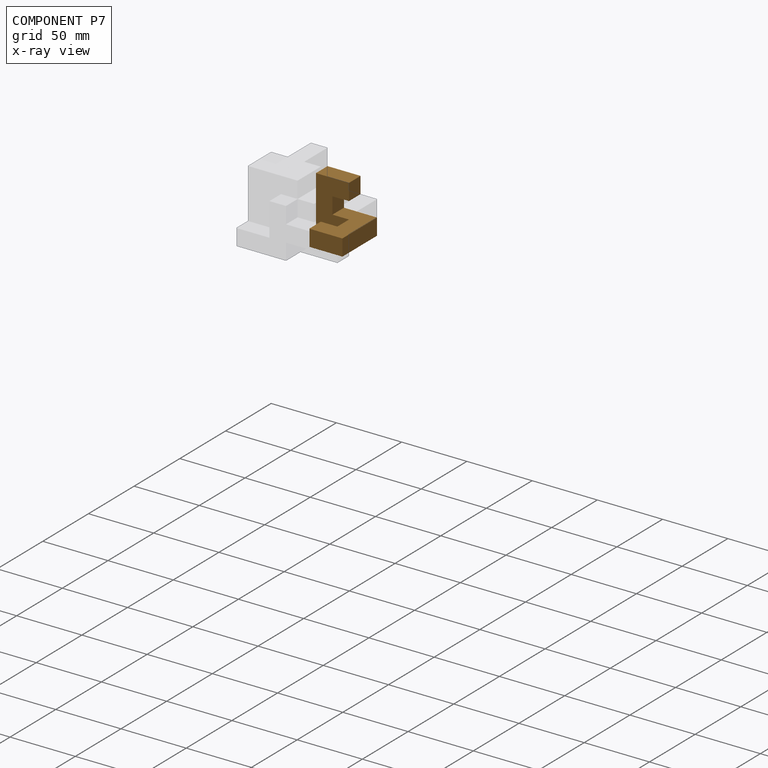
[diagram: component P7 — x-ray view]
COMPONENT P7 — geometry summary (no construction recipe available for this part):
  bounding box: 38.1 x 38.1 x 38.1 mm
  B-rep topology: 1 solid, 14 faces, 72 edges
  volume: 18435 mm^3 (33% of its bounding box)
Held by: PLANAR mate "Planar 21" to P6; PLANAR mate "Planar 20" to P4; PLANAR mate "Planar 19" to P6.
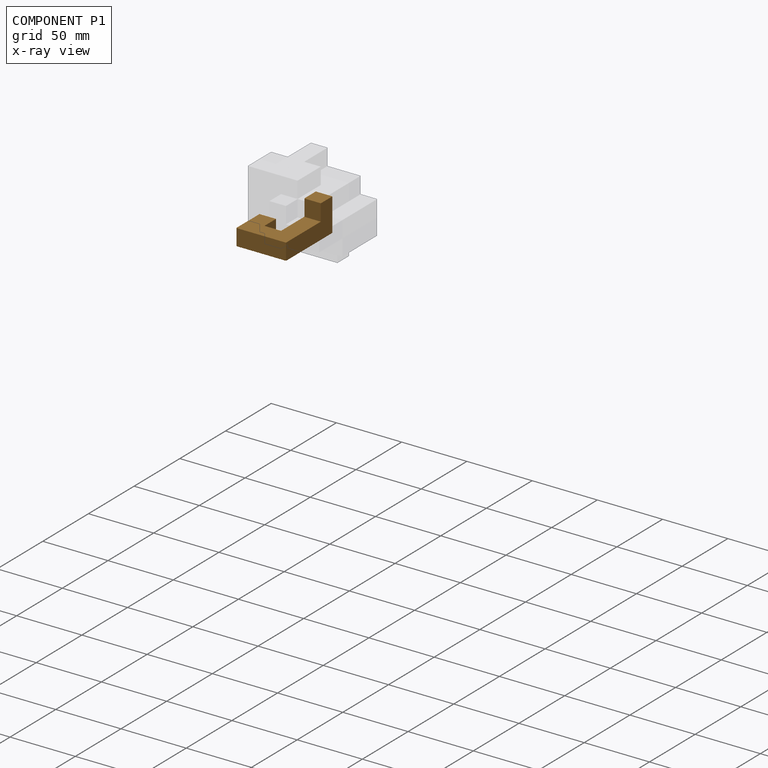
[diagram: component P1 — x-ray view]
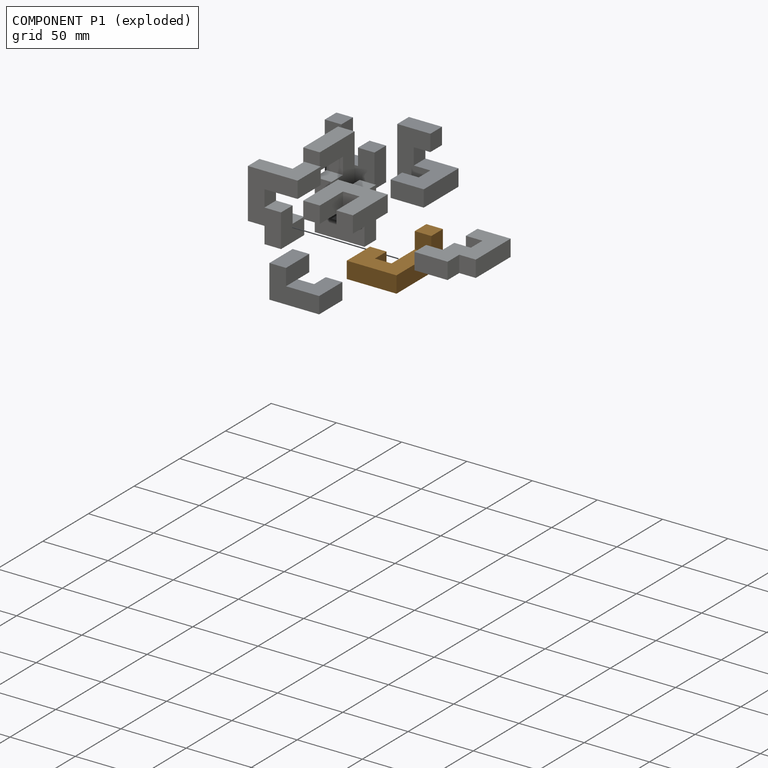
[diagram: component P1 — exploded]
COMPONENT P1 — geometry summary (no construction recipe available for this part):
  bounding box: 50.8 x 38.1 x 25.4 mm
  B-rep topology: 1 solid, 12 faces, 60 edges
  volume: 16387 mm^3 (33% of its bounding box)
Held by: PLANAR mate "Planar 9" to P2; PLANAR mate "Planar 11" to P4; PLANAR mate "Planar 8" to P2; PLANAR mate "Planar 7" to P5; PLANAR mate "Planar 17" to P3.
PROVENANCE & LICENSES
Assembly (occurrences, transforms, mates, per-part STEP geometry): AutoMate dataset, Zenodo record 7776208, CC0.
Construction recipes: CADFS (HuggingFace VladPyatov/CADFS, CC-BY-4.0, layered over the ABC dataset), FeatureScript reconstruction programs keyed by ABC model id.
Join: ABC meta listings map ABC model id -> Onshape documentId; within a shared document, parts are matched by geometric signature (bounding-box dims + volume at 0.1% relative tolerance, exact B-rep face/solid counts).
Verification: 4 of this assembly's 8 components carry a recipe attachment, and every attachment is mesh-verified: the CADFS STEP and the AutoMate member STEP were compared as meshes in their shared local frame (symmetric sampled-point-to-mesh distance); worst across the 4 attachments: below the mesh-comparison resolution (tessellation chordal tolerance ~0.103 mm) on a 68 mm part.
Renders: orthographic iso camera (az 35 / el 25); the floor grid conveys scale (grid pitch printed in each image; no ruler). In the exploded view each component is displaced by its stored offset vector: the offsets alone carry the explosion direction (mate normal/axis signs are not orientation cues and do not encode it), and separation distances are assigned per mate-chain, not proportionally to assembly-order depth.
